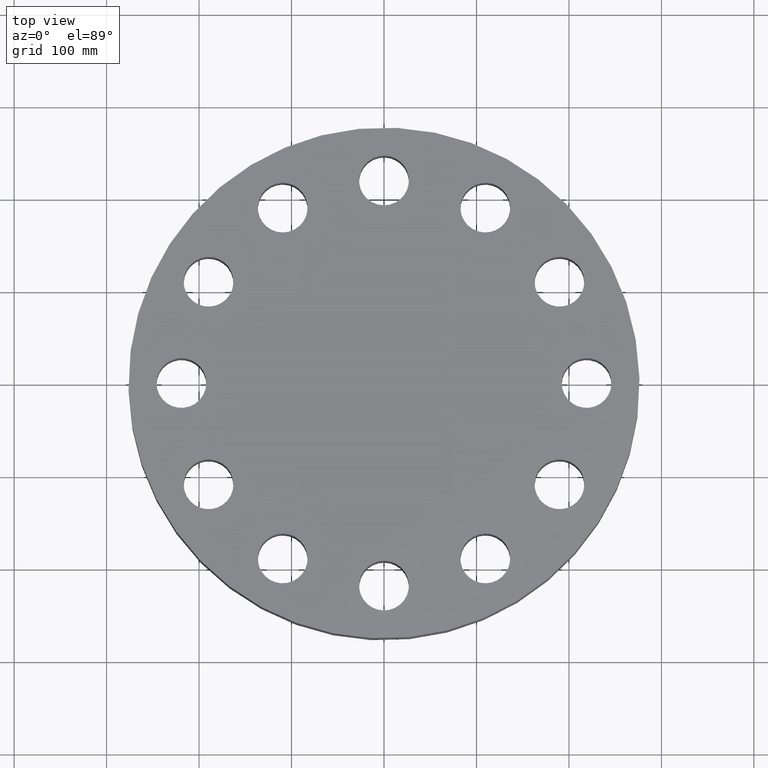
[diagram: clean part render]
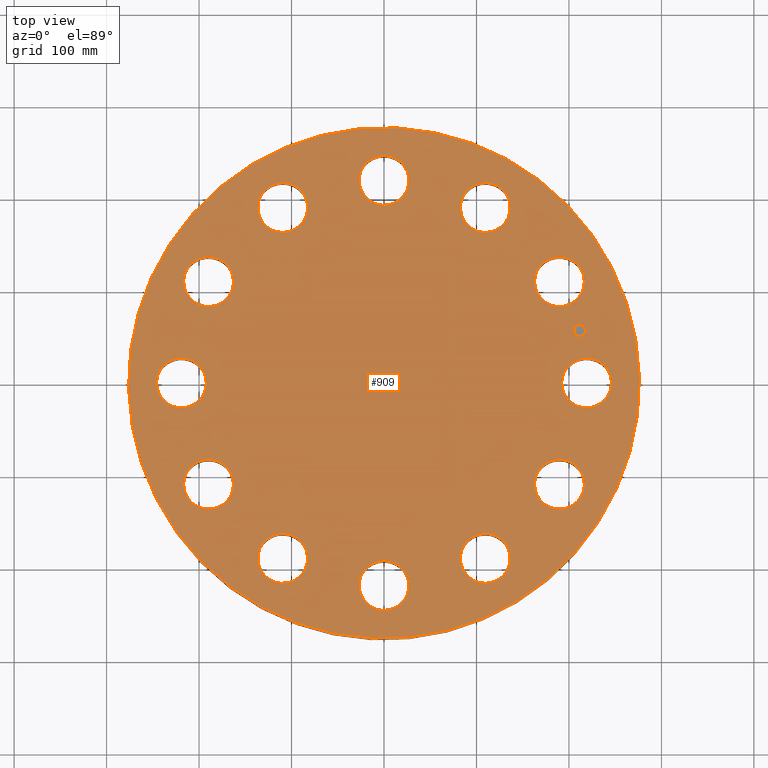
[diagram: same view with one face highlighted and labeled with its STEP entity id]
A machine part, top view. The second image highlights one B-rep face of the part: STEP entity #909.
In plain terms, the highlighted planar face has unit normal (0, 0, -1).
Its self-contained STEP definition (entity closure, byte-faithful):
#65=AXIS2_PLACEMENT_3D('Circle Axis2P3D',#63,#64,$) ;
#82=AXIS2_PLACEMENT_3D('Circle Axis2P3D',#80,#81,$) ;
#115=AXIS2_PLACEMENT_3D('Circle Axis2P3D',#113,#114,$) ;
#139=AXIS2_PLACEMENT_3D('Circle Axis2P3D',#137,#138,$) ;
#382=AXIS2_PLACEMENT_3D('Circle Axis2P3D',#380,#381,$) ;
#394=AXIS2_PLACEMENT_3D('Circle Axis2P3D',#392,#393,$) ;
#425=AXIS2_PLACEMENT_3D('Circle Axis2P3D',#423,#424,$) ;
#437=AXIS2_PLACEMENT_3D('Circle Axis2P3D',#435,#436,$) ;
#468=AXIS2_PLACEMENT_3D('Circle Axis2P3D',#466,#467,$) ;
#480=AXIS2_PLACEMENT_3D('Circle Axis2P3D',#478,#479,$) ;
#511=AXIS2_PLACEMENT_3D('Circle Axis2P3D',#509,#510,$) ;
#523=AXIS2_PLACEMENT_3D('Circle Axis2P3D',#521,#522,$) ;
#554=AXIS2_PLACEMENT_3D('Circle Axis2P3D',#552,#553,$) ;
#566=AXIS2_PLACEMENT_3D('Circle Axis2P3D',#564,#565,$) ;
#597=AXIS2_PLACEMENT_3D('Circle Axis2P3D',#595,#596,$) ;
#609=AXIS2_PLACEMENT_3D('Circle Axis2P3D',#607,#608,$) ;
#640=AXIS2_PLACEMENT_3D('Circle Axis2P3D',#638,#639,$) ;
#652=AXIS2_PLACEMENT_3D('Circle Axis2P3D',#650,#651,$) ;
#683=AXIS2_PLACEMENT_3D('Circle Axis2P3D',#681,#682,$) ;
#695=AXIS2_PLACEMENT_3D('Circle Axis2P3D',#693,#694,$) ;
#726=AXIS2_PLACEMENT_3D('Circle Axis2P3D',#724,#725,$) ;
#738=AXIS2_PLACEMENT_3D('Circle Axis2P3D',#736,#737,$) ;
#769=AXIS2_PLACEMENT_3D('Circle Axis2P3D',#767,#768,$) ;
#781=AXIS2_PLACEMENT_3D('Circle Axis2P3D',#779,#780,$) ;
#812=AXIS2_PLACEMENT_3D('Circle Axis2P3D',#810,#811,$) ;
#824=AXIS2_PLACEMENT_3D('Circle Axis2P3D',#822,#823,$) ;
#837=AXIS2_PLACEMENT_3D('Plane Axis2P3D',#834,#835,#836) ;
#893=AXIS2_PLACEMENT_3D('Circle Axis2P3D',#891,#892,$) ;
#902=AXIS2_PLACEMENT_3D('Circle Axis2P3D',#900,#901,$) ;
#46=CARTESIAN_POINT('Vertex',(7.69476248443,0.508191070922,5.00000000002)) ;
#60=CARTESIAN_POINT('Vertex',(9.55523751564,-0.508191070922,5.00000000002)) ;
#63=CARTESIAN_POINT('Axis2P3D Location',(8.62500000003,0.,5.00000000002)) ;
#80=CARTESIAN_POINT('Axis2P3D Location',(8.62500000003,0.,5.00000000002)) ;
#110=CARTESIAN_POINT('Vertex',(5.21375273234,9.5437103606,5.00000000002)) ;
#113=CARTESIAN_POINT('Axis2P3D Location',(0.,0.,5.00000000002)) ;
#117=CARTESIAN_POINT('Vertex',(-5.21375273234,-9.5437103606,5.00000000002)) ;
#137=CARTESIAN_POINT('Axis2P3D Location',(0.,0.,5.00000000002)) ;
#370=CARTESIAN_POINT('Vertex',(-6.91795532306,3.40727486482,5.00000000002)) ;
#377=CARTESIAN_POINT('Vertex',(-8.02098289228,5.21772513522,5.00000000002)) ;
#380=CARTESIAN_POINT('Axis2P3D Location',(-7.46946910767,4.31250000002,5.00000000002)) ;
#392=CARTESIAN_POINT('Axis2P3D Location',(-7.46946910767,4.31250000002,5.00000000002)) ;
#413=CARTESIAN_POINT('Vertex',(4.28748761961,-6.40976425214,5.00000000002)) ;
#420=CARTESIAN_POINT('Vertex',(4.33751238043,-8.5291739632,5.00000000002)) ;
#423=CARTESIAN_POINT('Axis2P3D Location',(4.31250000002,-7.46946910767,5.00000000002)) ;
#435=CARTESIAN_POINT('Axis2P3D Location',(4.31250000002,-7.46946910767,5.00000000002)) ;
#456=CARTESIAN_POINT('Vertex',(-4.28748761961,6.40976425214,5.00000000002)) ;
#463=CARTESIAN_POINT('Vertex',(-4.33751238043,8.5291739632,5.00000000002)) ;
#466=CARTESIAN_POINT('Axis2P3D Location',(-4.31250000002,7.46946910767,5.00000000002)) ;
#478=CARTESIAN_POINT('Axis2P3D Location',(-4.31250000002,7.46946910767,5.00000000002)) ;
#499=CARTESIAN_POINT('Vertex',(0.508191070922,-7.69476248443,5.00000000002)) ;
#506=CARTESIAN_POINT('Vertex',(-0.508191070922,-9.55523751564,5.00000000002)) ;
#509=CARTESIAN_POINT('Axis2P3D Location',(-5.9083600607E-016,-8.62500000003,5.00000000002)) ;
#521=CARTESIAN_POINT('Axis2P3D Location',(-5.9083600607E-016,-8.62500000003,5.00000000002)) ;
#542=CARTESIAN_POINT('Vertex',(-0.508191070922,7.69476248443,5.00000000002)) ;
#549=CARTESIAN_POINT('Vertex',(0.508191070922,9.55523751564,5.00000000002)) ;
#552=CARTESIAN_POINT('Axis2P3D Location',(-4.65421858198E-016,8.62500000003,5.00000000002)) ;
#564=CARTESIAN_POINT('Axis2P3D Location',(-4.65421858198E-016,8.62500000003,5.00000000002)) ;
#585=CARTESIAN_POINT('Vertex',(-3.40727486482,-6.91795532306,5.00000000002)) ;
#592=CARTESIAN_POINT('Vertex',(-5.21772513522,-8.02098289228,5.00000000002)) ;
#595=CARTESIAN_POINT('Axis2P3D Location',(-4.31250000002,-7.46946910767,5.00000000002)) ;
#607=CARTESIAN_POINT('Axis2P3D Location',(-4.31250000002,-7.46946910767,5.00000000002)) ;
#628=CARTESIAN_POINT('Vertex',(3.40727486482,6.91795532306,5.00000000002)) ;
#635=CARTESIAN_POINT('Vertex',(5.21772513522,8.02098289228,5.00000000002)) ;
#638=CARTESIAN_POINT('Axis2P3D Location',(4.31250000002,7.46946910767,5.00000000002)) ;
#650=CARTESIAN_POINT('Axis2P3D Location',(4.31250000002,7.46946910767,5.00000000002)) ;
#671=CARTESIAN_POINT('Vertex',(-6.40976425214,-4.28748761961,5.00000000002)) ;
#678=CARTESIAN_POINT('Vertex',(-8.5291739632,-4.33751238043,5.00000000002)) ;
#681=CARTESIAN_POINT('Axis2P3D Location',(-7.46946910767,-4.31250000002,5.00000000002)) ;
#693=CARTESIAN_POINT('Axis2P3D Location',(-7.46946910767,-4.31250000002,5.00000000002)) ;
#714=CARTESIAN_POINT('Vertex',(6.40976425214,4.28748761961,5.00000000002)) ;
#721=CARTESIAN_POINT('Vertex',(8.5291739632,4.33751238043,5.00000000002)) ;
#724=CARTESIAN_POINT('Axis2P3D Location',(7.46946910767,4.31250000002,5.00000000002)) ;
#736=CARTESIAN_POINT('Axis2P3D Location',(7.46946910767,4.31250000002,5.00000000002)) ;
#757=CARTESIAN_POINT('Vertex',(-7.69476248443,-0.508191070922,5.00000000002)) ;
#764=CARTESIAN_POINT('Vertex',(-9.55523751564,0.508191070922,5.00000000002)) ;
#767=CARTESIAN_POINT('Axis2P3D Location',(-8.62500000003,-1.05625786427E-015,5.00000000002)) ;
#779=CARTESIAN_POINT('Axis2P3D Location',(-8.62500000003,-1.05625786427E-015,5.00000000002)) ;
#800=CARTESIAN_POINT('Vertex',(6.91795532306,-3.40727486482,5.00000000002)) ;
#807=CARTESIAN_POINT('Vertex',(8.02098289228,-5.21772513522,5.00000000002)) ;
#810=CARTESIAN_POINT('Axis2P3D Location',(7.46946910767,-4.31250000002,5.00000000002)) ;
#822=CARTESIAN_POINT('Axis2P3D Location',(7.46946910767,-4.31250000002,5.00000000002)) ;
#834=CARTESIAN_POINT('Axis2P3D Location',(0.,10.875,5.00000000002)) ;
#891=CARTESIAN_POINT('Axis2P3D Location',(8.33111025178,2.23231426402,5.00000000002)) ;
#895=CARTESIAN_POINT('Vertex',(8.26705253811,2.47138090603,5.00000000002)) ;
#897=CARTESIAN_POINT('Vertex',(8.39516796544,1.99324762201,5.00000000002)) ;
#900=CARTESIAN_POINT('Axis2P3D Location',(8.33111025178,2.23231426402,5.00000000002)) ;
#64=DIRECTION('Axis2P3D Direction',(0.,-0.,-0.0393700787402)) ;
#81=DIRECTION('Axis2P3D Direction',(0.,-0.,-0.0393700787402)) ;
#114=DIRECTION('Axis2P3D Direction',(0.,0.,-0.0393700787402)) ;
#138=DIRECTION('Axis2P3D Direction',(0.,0.,-0.0393700787402)) ;
#381=DIRECTION('Axis2P3D Direction',(0.,0.,-0.0393700787402)) ;
#393=DIRECTION('Axis2P3D Direction',(0.,0.,-0.0393700787402)) ;
#424=DIRECTION('Axis2P3D Direction',(0.,-0.,-0.0393700787402)) ;
#436=DIRECTION('Axis2P3D Direction',(0.,-0.,-0.0393700787402)) ;
#467=DIRECTION('Axis2P3D Direction',(0.,0.,-0.0393700787402)) ;
#479=DIRECTION('Axis2P3D Direction',(0.,0.,-0.0393700787402)) ;
#510=DIRECTION('Axis2P3D Direction',(0.,-0.,-0.0393700787402)) ;
#522=DIRECTION('Axis2P3D Direction',(0.,-0.,-0.0393700787402)) ;
#553=DIRECTION('Axis2P3D Direction',(0.,0.,-0.0393700787402)) ;
#565=DIRECTION('Axis2P3D Direction',(0.,0.,-0.0393700787402)) ;
#596=DIRECTION('Axis2P3D Direction',(-0.,0.,-0.0393700787402)) ;
#608=DIRECTION('Axis2P3D Direction',(-0.,0.,-0.0393700787402)) ;
#639=DIRECTION('Axis2P3D Direction',(0.,0.,-0.0393700787402)) ;
#651=DIRECTION('Axis2P3D Direction',(0.,0.,-0.0393700787402)) ;
#682=DIRECTION('Axis2P3D Direction',(-0.,0.,-0.0393700787402)) ;
#694=DIRECTION('Axis2P3D Direction',(-0.,0.,-0.0393700787402)) ;
#725=DIRECTION('Axis2P3D Direction',(0.,0.,-0.0393700787402)) ;
#737=DIRECTION('Axis2P3D Direction',(0.,0.,-0.0393700787402)) ;
#768=DIRECTION('Axis2P3D Direction',(-0.,0.,-0.0393700787402)) ;
#780=DIRECTION('Axis2P3D Direction',(-0.,0.,-0.0393700787402)) ;
#811=DIRECTION('Axis2P3D Direction',(0.,-0.,-0.0393700787402)) ;
#823=DIRECTION('Axis2P3D Direction',(0.,-0.,-0.0393700787402)) ;
#835=DIRECTION('Axis2P3D Direction',(0.,0.,-0.0393700787402)) ;
#836=DIRECTION('Axis2P3D XDirection',(0.0393700787402,0.,0.)) ;
#892=DIRECTION('Axis2P3D Direction',(0.,0.,-0.0393700787402)) ;
#901=DIRECTION('Axis2P3D Direction',(0.,0.,-0.0393700787402)) ;
#840=ORIENTED_EDGE('',*,*,#119,.F.) ;
#841=ORIENTED_EDGE('',*,*,#141,.F.) ;
#844=ORIENTED_EDGE('',*,*,#67,.T.) ;
#845=ORIENTED_EDGE('',*,*,#84,.T.) ;
#848=ORIENTED_EDGE('',*,*,#826,.T.) ;
#849=ORIENTED_EDGE('',*,*,#814,.T.) ;
#852=ORIENTED_EDGE('',*,*,#439,.T.) ;
#853=ORIENTED_EDGE('',*,*,#427,.T.) ;
#856=ORIENTED_EDGE('',*,*,#525,.T.) ;
#857=ORIENTED_EDGE('',*,*,#513,.T.) ;
#860=ORIENTED_EDGE('',*,*,#611,.T.) ;
#861=ORIENTED_EDGE('',*,*,#599,.T.) ;
#864=ORIENTED_EDGE('',*,*,#697,.T.) ;
#865=ORIENTED_EDGE('',*,*,#685,.T.) ;
#868=ORIENTED_EDGE('',*,*,#783,.T.) ;
#869=ORIENTED_EDGE('',*,*,#771,.T.) ;
#872=ORIENTED_EDGE('',*,*,#396,.T.) ;
#873=ORIENTED_EDGE('',*,*,#384,.T.) ;
#876=ORIENTED_EDGE('',*,*,#482,.T.) ;
#877=ORIENTED_EDGE('',*,*,#470,.T.) ;
#880=ORIENTED_EDGE('',*,*,#568,.T.) ;
#881=ORIENTED_EDGE('',*,*,#556,.T.) ;
#884=ORIENTED_EDGE('',*,*,#654,.T.) ;
#885=ORIENTED_EDGE('',*,*,#642,.T.) ;
#888=ORIENTED_EDGE('',*,*,#740,.T.) ;
#889=ORIENTED_EDGE('',*,*,#728,.T.) ;
#906=ORIENTED_EDGE('',*,*,#899,.T.) ;
#907=ORIENTED_EDGE('',*,*,#904,.T.) ;
#846=FACE_BOUND('',#843,.T.) ;
#850=FACE_BOUND('',#847,.T.) ;
#854=FACE_BOUND('',#851,.T.) ;
#858=FACE_BOUND('',#855,.T.) ;
#862=FACE_BOUND('',#859,.T.) ;
#866=FACE_BOUND('',#863,.T.) ;
#870=FACE_BOUND('',#867,.T.) ;
#874=FACE_BOUND('',#871,.T.) ;
#878=FACE_BOUND('',#875,.T.) ;
#882=FACE_BOUND('',#879,.T.) ;
#886=FACE_BOUND('',#883,.T.) ;
#890=FACE_BOUND('',#887,.T.) ;
#908=FACE_BOUND('',#905,.T.) ;
#909=ADVANCED_FACE('PartBody',(#842,#846,#850,#854,#858,#862,#866,#870,#874,#878,#882,#886,#890,#908),#838,.F.) ;
#66=CIRCLE('generated circle',#65,1.06) ;
#83=CIRCLE('generated circle',#82,1.06) ;
#116=CIRCLE('generated circle',#115,10.875) ;
#140=CIRCLE('generated circle',#139,10.875) ;
#383=CIRCLE('generated circle',#382,1.06) ;
#395=CIRCLE('generated circle',#394,1.06) ;
#426=CIRCLE('generated circle',#425,1.06) ;
#438=CIRCLE('generated circle',#437,1.06) ;
#469=CIRCLE('generated circle',#468,1.06) ;
#481=CIRCLE('generated circle',#480,1.06) ;
#512=CIRCLE('generated circle',#511,1.06) ;
#524=CIRCLE('generated circle',#523,1.06) ;
#555=CIRCLE('generated circle',#554,1.06) ;
#567=CIRCLE('generated circle',#566,1.06) ;
#598=CIRCLE('generated circle',#597,1.06) ;
#610=CIRCLE('generated circle',#609,1.06) ;
#641=CIRCLE('generated circle',#640,1.06) ;
#653=CIRCLE('generated circle',#652,1.06) ;
#684=CIRCLE('generated circle',#683,1.06) ;
#696=CIRCLE('generated circle',#695,1.06) ;
#727=CIRCLE('generated circle',#726,1.06) ;
#739=CIRCLE('generated circle',#738,1.06) ;
#770=CIRCLE('generated circle',#769,1.06) ;
#782=CIRCLE('generated circle',#781,1.06) ;
#813=CIRCLE('generated circle',#812,1.06) ;
#825=CIRCLE('generated circle',#824,1.06) ;
#894=CIRCLE('generated circle',#893,0.247500000001) ;
#903=CIRCLE('generated circle',#902,0.247500000001) ;
#67=EDGE_CURVE('',#47,#61,#66,.T.) ;
#84=EDGE_CURVE('',#61,#47,#83,.T.) ;
#119=EDGE_CURVE('',#111,#118,#116,.T.) ;
#141=EDGE_CURVE('',#118,#111,#140,.T.) ;
#384=EDGE_CURVE('',#371,#378,#383,.T.) ;
#396=EDGE_CURVE('',#378,#371,#395,.T.) ;
#427=EDGE_CURVE('',#414,#421,#426,.T.) ;
#439=EDGE_CURVE('',#421,#414,#438,.T.) ;
#470=EDGE_CURVE('',#457,#464,#469,.T.) ;
#482=EDGE_CURVE('',#464,#457,#481,.T.) ;
#513=EDGE_CURVE('',#500,#507,#512,.T.) ;
#525=EDGE_CURVE('',#507,#500,#524,.T.) ;
#556=EDGE_CURVE('',#543,#550,#555,.T.) ;
#568=EDGE_CURVE('',#550,#543,#567,.T.) ;
#599=EDGE_CURVE('',#586,#593,#598,.T.) ;
#611=EDGE_CURVE('',#593,#586,#610,.T.) ;
#642=EDGE_CURVE('',#629,#636,#641,.T.) ;
#654=EDGE_CURVE('',#636,#629,#653,.T.) ;
#685=EDGE_CURVE('',#672,#679,#684,.T.) ;
#697=EDGE_CURVE('',#679,#672,#696,.T.) ;
#728=EDGE_CURVE('',#715,#722,#727,.T.) ;
#740=EDGE_CURVE('',#722,#715,#739,.T.) ;
#771=EDGE_CURVE('',#758,#765,#770,.T.) ;
#783=EDGE_CURVE('',#765,#758,#782,.T.) ;
#814=EDGE_CURVE('',#801,#808,#813,.T.) ;
#826=EDGE_CURVE('',#808,#801,#825,.T.) ;
#899=EDGE_CURVE('',#896,#898,#894,.T.) ;
#904=EDGE_CURVE('',#898,#896,#903,.T.) ;
#839=EDGE_LOOP('',(#840,#841)) ;
#843=EDGE_LOOP('',(#844,#845)) ;
#847=EDGE_LOOP('',(#848,#849)) ;
#851=EDGE_LOOP('',(#852,#853)) ;
#855=EDGE_LOOP('',(#856,#857)) ;
#859=EDGE_LOOP('',(#860,#861)) ;
#863=EDGE_LOOP('',(#864,#865)) ;
#867=EDGE_LOOP('',(#868,#869)) ;
#871=EDGE_LOOP('',(#872,#873)) ;
#875=EDGE_LOOP('',(#876,#877)) ;
#879=EDGE_LOOP('',(#880,#881)) ;
#883=EDGE_LOOP('',(#884,#885)) ;
#887=EDGE_LOOP('',(#888,#889)) ;
#905=EDGE_LOOP('',(#906,#907)) ;
#842=FACE_OUTER_BOUND('',#839,.T.) ;
#838=PLANE('',#837) ;
#47=VERTEX_POINT('',#46) ;
#61=VERTEX_POINT('',#60) ;
#111=VERTEX_POINT('',#110) ;
#118=VERTEX_POINT('',#117) ;
#371=VERTEX_POINT('',#370) ;
#378=VERTEX_POINT('',#377) ;
#414=VERTEX_POINT('',#413) ;
#421=VERTEX_POINT('',#420) ;
#457=VERTEX_POINT('',#456) ;
#464=VERTEX_POINT('',#463) ;
#500=VERTEX_POINT('',#499) ;
#507=VERTEX_POINT('',#506) ;
#543=VERTEX_POINT('',#542) ;
#550=VERTEX_POINT('',#549) ;
#586=VERTEX_POINT('',#585) ;
#593=VERTEX_POINT('',#592) ;
#629=VERTEX_POINT('',#628) ;
#636=VERTEX_POINT('',#635) ;
#672=VERTEX_POINT('',#671) ;
#679=VERTEX_POINT('',#678) ;
#715=VERTEX_POINT('',#714) ;
#722=VERTEX_POINT('',#721) ;
#758=VERTEX_POINT('',#757) ;
#765=VERTEX_POINT('',#764) ;
#801=VERTEX_POINT('',#800) ;
#808=VERTEX_POINT('',#807) ;
#896=VERTEX_POINT('',#895) ;
#898=VERTEX_POINT('',#897) ;